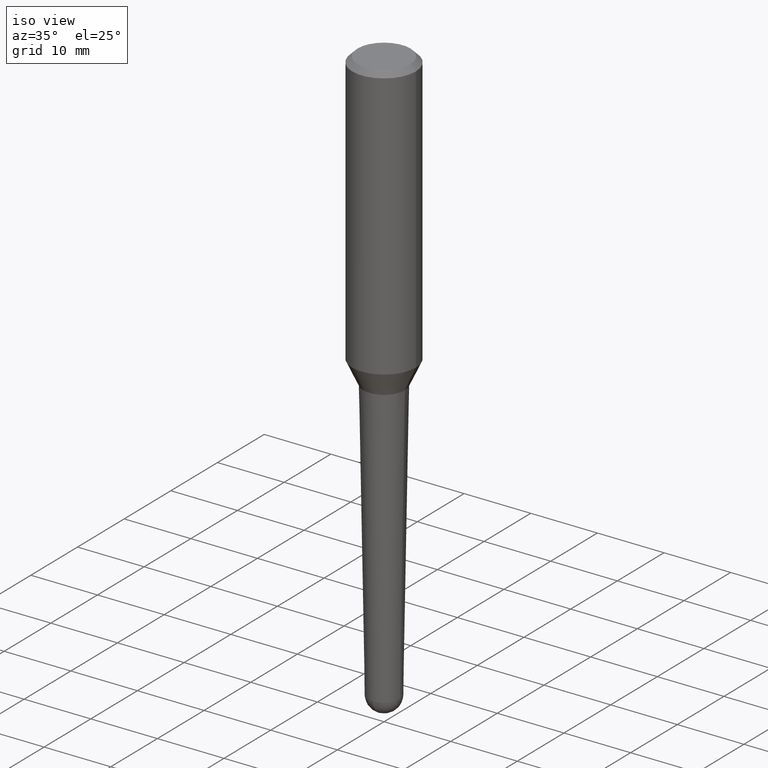
[diagram: clean part render]
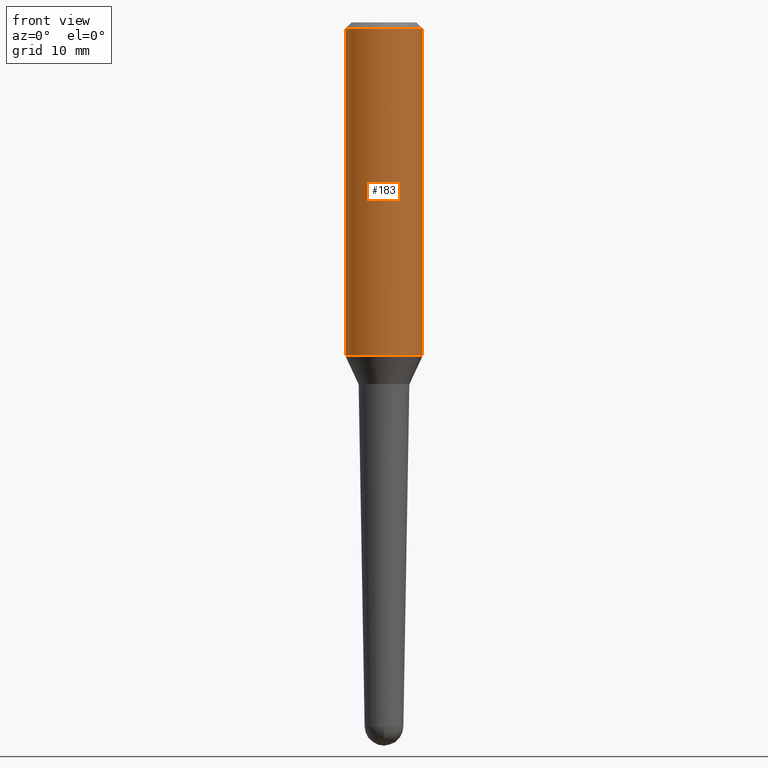
[diagram: tour spotlight — one face highlighted and labeled with its STEP entity id]
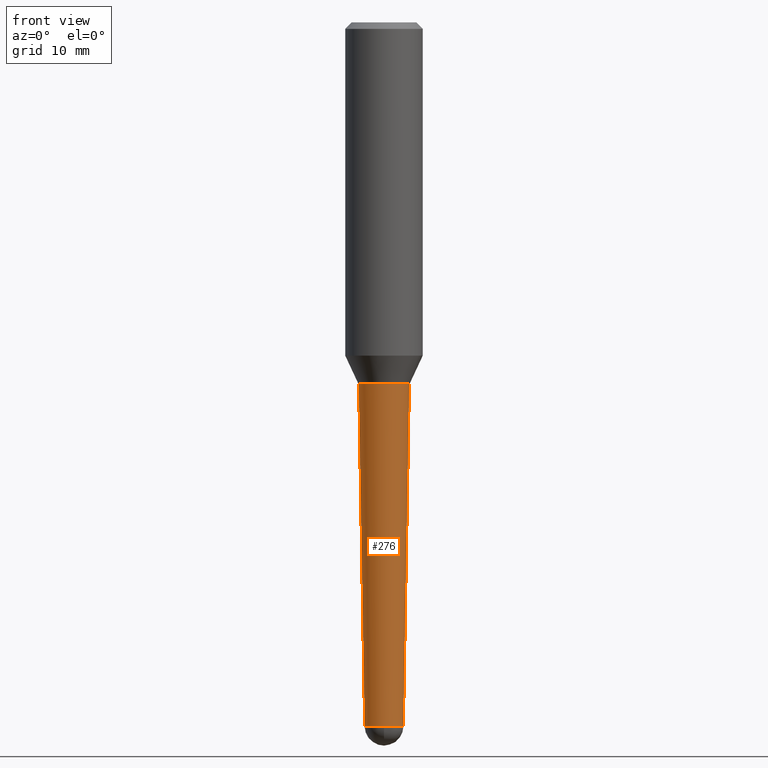
[diagram: tour spotlight — one face highlighted and labeled with its STEP entity id]
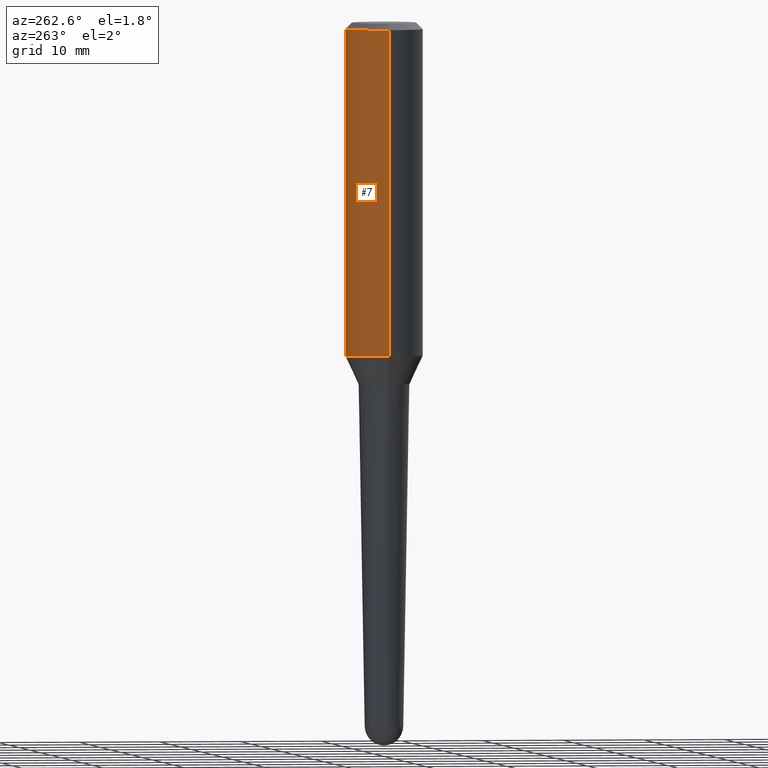
[diagram: tour spotlight — one face highlighted and labeled with its STEP entity id]
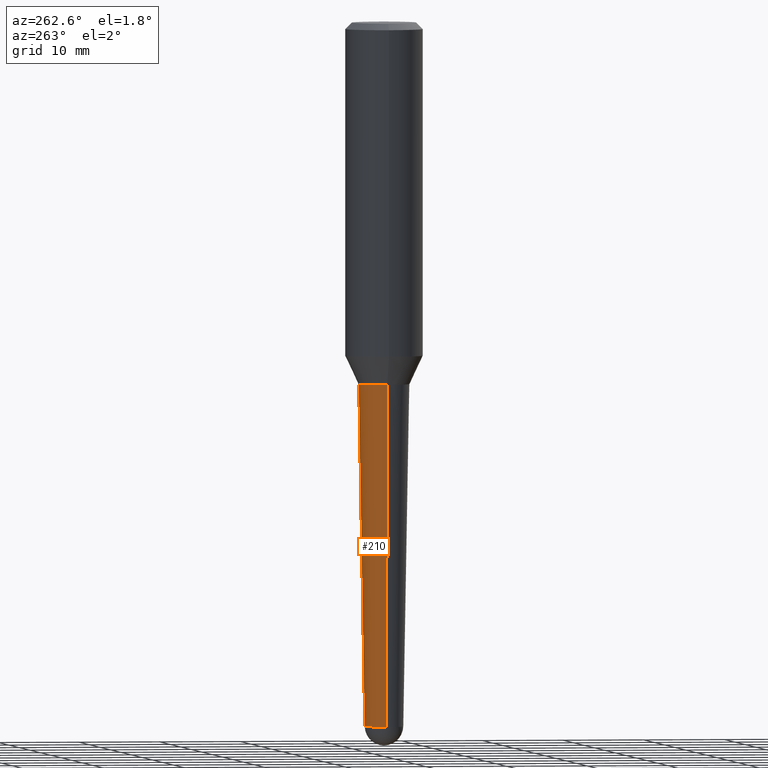
[diagram: tour spotlight — one face highlighted and labeled with its STEP entity id]
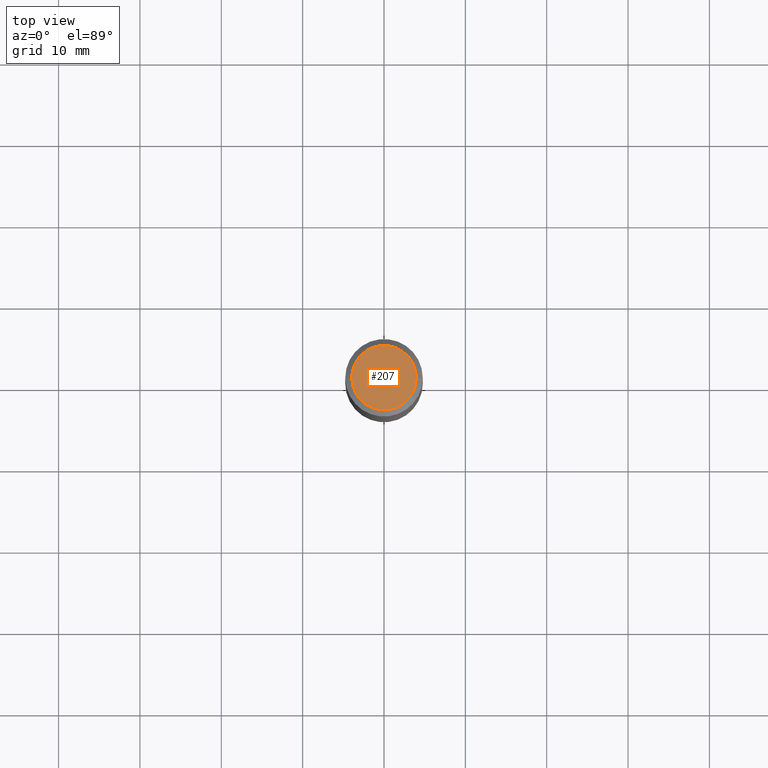
[diagram: tour spotlight — one face highlighted and labeled with its STEP entity id]
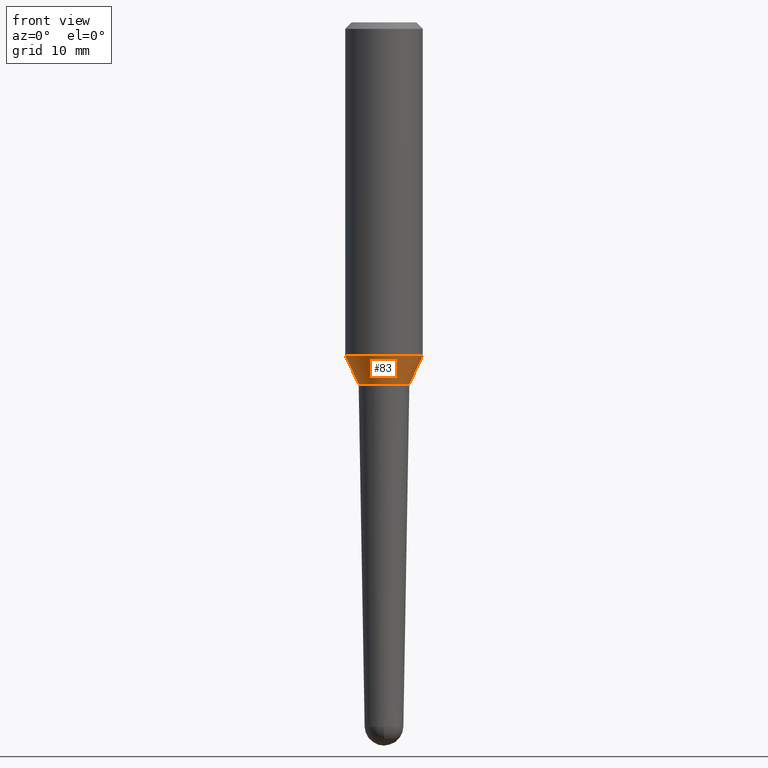
[diagram: tour spotlight — one face highlighted and labeled with its STEP entity id]
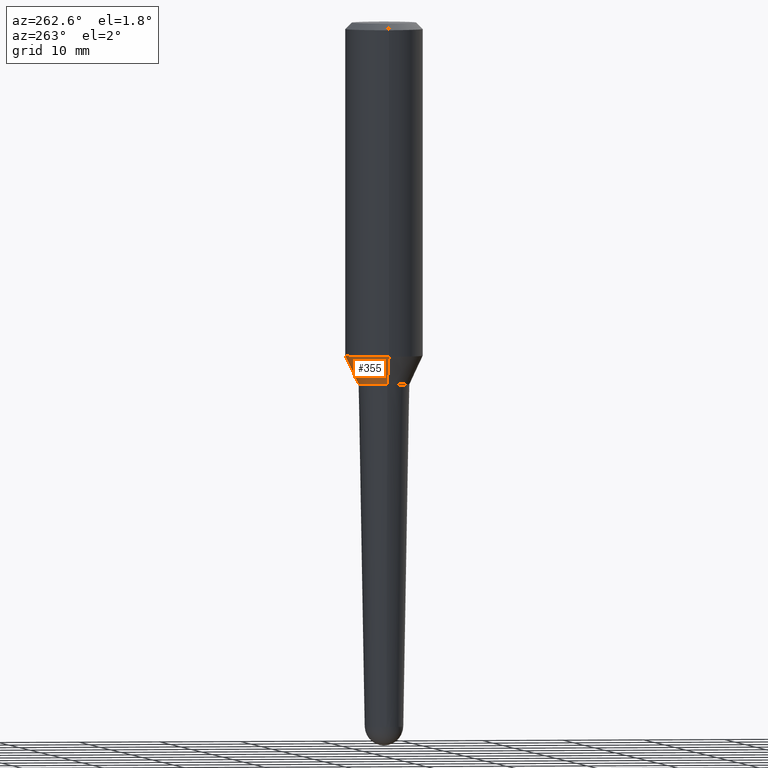
[diagram: tour spotlight — one face highlighted and labeled with its STEP entity id]
A machine part: a face-by-face anatomy tour. The part has 15 B-rep faces; the first image is the clean iso view, then the 7 largest visible faces are spotlighted one at a time (largest first), each with its STEP entity span.

Face 1 — front view, entity #183. In plain terms, the highlighted cylindrical surface (partial cylindrical patch) has radius 4.7625 mm, axis along (-0, 0, 1).
Definition (entity closure, byte-faithful):
#1 = ORIENTED_EDGE ( 'NONE', *, *, #111, .T. ) ;
#20 = CYLINDRICAL_SURFACE ( 'NONE', #156, 0.1875000000000001110 ) ;
#31 = LINE ( 'NONE', #93, #299 ) ;
#44 = CARTESIAN_POINT ( 'NONE',  ( -1.450455682483482035E-44, 2.070866303999251778E-30, 5.931196827434296760E-16 ) ) ;
#47 = EDGE_CURVE ( 'NONE', #339, #372, #418, .T. ) ;
#48 = DIRECTION ( 'NONE',  ( 1.000000000000000000, -6.982962677686265133E-15, 0.000000000000000000 ) ) ;
#76 = ORIENTED_EDGE ( 'NONE', *, *, #138, .F. ) ;
#79 = FACE_OUTER_BOUND ( 'NONE', #280, .T. ) ;
#88 = DIRECTION ( 'NONE',  ( 1.000000000000000000, -6.982962677686266711E-15, 0.000000000000000000 ) ) ;
#93 = CARTESIAN_POINT ( 'NONE',  ( 0.1875000000000001110, -1.309305502066173628E-15, 5.931196827434387479E-16 ) ) ;
#102 = CARTESIAN_POINT ( 'NONE',  ( -0.1875000000000001110, 1.332267629550190807E-15, 5.931196827434205055E-16 ) ) ;
#111 = EDGE_CURVE ( 'NONE', #339, #392, #412, .T. ) ;
#127 = VERTEX_POINT ( 'NONE', #289 ) ;
#134 = AXIS2_PLACEMENT_3D ( 'NONE', #424, #398, #48 ) ;
#138 = EDGE_CURVE ( 'NONE', #372, #127, #237, .T. ) ;
#156 = AXIS2_PLACEMENT_3D ( 'NONE', #44, #160, #184 ) ;
#160 = DIRECTION ( 'NONE',  ( -2.445468806185136597E-29, 3.491481338843145583E-15, 1.000000000000000000 ) ) ;
#162 = CARTESIAN_POINT ( 'NONE',  ( -0.1874999999999999722, -1.537696109422416585E-15, -0.03125000000000003469 ) ) ;
#183 = ADVANCED_FACE ( 'NONE', ( #79 ), #20, .T. ) ;
#184 = DIRECTION ( 'NONE',  ( 1.000000000000000000, -6.982962677686266711E-15, 4.852736867747363404E-29 ) ) ;
#215 = VECTOR ( 'NONE', #248, 39.37007874015748143 ) ;
#237 = CIRCLE ( 'NONE', #332, 0.1874999999999999722 ) ;
#248 = DIRECTION ( 'NONE',  ( -2.445468806185136877E-29, 3.491481338843145188E-15, 1.000000000000000000 ) ) ;
#254 = CARTESIAN_POINT ( 'NONE',  ( 7.642090019328561499E-31, -1.091087918388484350E-16, -0.03125000000000003469 ) ) ;
#263 = ORIENTED_EDGE ( 'NONE', *, *, #47, .F. ) ;
#280 = EDGE_LOOP ( 'NONE', ( #263, #1, #284, #76 ) ) ;
#284 = ORIENTED_EDGE ( 'NONE', *, *, #386, .T. ) ;
#289 = CARTESIAN_POINT ( 'NONE',  ( 0.1874999999999999722, -1.418414293905023123E-15, -0.03125000000000003469 ) ) ;
#299 = VECTOR ( 'NONE', #446, 39.37007874015748143 ) ;
#306 = CARTESIAN_POINT ( 'NONE',  ( 0.1875000000000002220, -6.940124188172538719E-15, -1.612730568960181632 ) ) ;
#332 = AXIS2_PLACEMENT_3D ( 'NONE', #254, #438, #88 ) ;
#339 = VERTEX_POINT ( 'NONE', #380 ) ;
#372 = VERTEX_POINT ( 'NONE', #162 ) ;
#380 = CARTESIAN_POINT ( 'NONE',  ( -0.1875000000000002220, -4.298551056556173495E-15, -1.612730568960181632 ) ) ;
#386 = EDGE_CURVE ( 'NONE', #392, #127, #31, .T. ) ;
#392 = VERTEX_POINT ( 'NONE', #306 ) ;
#398 = DIRECTION ( 'NONE',  ( -2.445468806185136597E-29, 3.491481338843145583E-15, 1.000000000000000000 ) ) ;
#412 = CIRCLE ( 'NONE', #134, 0.1875000000000002220 ) ;
#418 = LINE ( 'NONE', #102, #215 ) ;
#424 = CARTESIAN_POINT ( 'NONE',  ( 3.943882299173331521E-29, -5.630818686106362922E-15, -1.612730568960181632 ) ) ;
#438 = DIRECTION ( 'NONE',  ( -2.445468806185136597E-29, 3.491481338843145583E-15, 1.000000000000000000 ) ) ;
#446 = DIRECTION ( 'NONE',  ( -2.445468806185136877E-29, 3.491481338843145188E-15, 1.000000000000000000 ) ) ;

Face 2 — front view, entity #276. In plain terms, the highlighted conical surface has half-angle 1 deg.
Definition (entity closure, byte-faithful):
#4 = CIRCLE ( 'NONE', #295, 0.1227233669046327580 ) ;
#9 = CARTESIAN_POINT ( 'NONE',  ( 8.333759167425016491E-29, -1.189839941604824975E-14, -3.407837035723817021 ) ) ;
#19 = VERTEX_POINT ( 'NONE', #282 ) ;
#24 = EDGE_CURVE ( 'NONE', #56, #19, #422, .T. ) ;
#33 = CARTESIAN_POINT ( 'NONE',  ( 0.09378571380566988469, -1.255330155525340776E-14, -3.407837035723817021 ) ) ;
#45 = VECTOR ( 'NONE', #337, 39.37007874015748143 ) ;
#56 = VERTEX_POINT ( 'NONE', #395 ) ;
#92 = ORIENTED_EDGE ( 'NONE', *, *, #24, .F. ) ;
#110 = CARTESIAN_POINT ( 'NONE',  ( 0.09378571380566988469, -9.760183294501979653E-15, -3.407837035723817021 ) ) ;
#114 = VERTEX_POINT ( 'NONE', #188 ) ;
#132 = CARTESIAN_POINT ( 'NONE',  ( 8.333759167425016491E-29, -1.189839941604824975E-14, -3.407837035723817021 ) ) ;
#135 = LINE ( 'NONE', #33, #45 ) ;
#140 = CONICAL_SURFACE ( 'NONE', #155, 0.09378571380566988469, 0.01745329251994321915 ) ;
#142 = DIRECTION ( 'NONE',  ( -0.01745240643728343533, 3.614956375479315570E-15, 0.9998476951563912696 ) ) ;
#149 = DIRECTION ( 'NONE',  ( 1.000000000000000000, -6.982962677686268288E-15, 0.000000000000000000 ) ) ;
#152 = EDGE_CURVE ( 'NONE', #114, #176, #278, .T. ) ;
#155 = AXIS2_PLACEMENT_3D ( 'NONE', #132, #414, #340 ) ;
#161 = VERTEX_POINT ( 'NONE', #288 ) ;
#172 = CARTESIAN_POINT ( 'NONE',  ( -0.09378571380566988469, -1.123201183942130320E-14, -3.407837035723817021 ) ) ;
#176 = VERTEX_POINT ( 'NONE', #110 ) ;
#182 = DIRECTION ( 'NONE',  ( -2.445468806185136597E-29, 3.491481338843145583E-15, 1.000000000000000000 ) ) ;
#188 = CARTESIAN_POINT ( 'NONE',  ( -6.663875766268585857E-16, -0.09378571380568140325, -3.407837035723816577 ) ) ;
#192 = AXIS2_PLACEMENT_3D ( 'NONE', #9, #182, #149 ) ;
#198 = ORIENTED_EDGE ( 'NONE', *, *, #249, .F. ) ;
#233 = CARTESIAN_POINT ( 'NONE',  ( 4.279570410823989044E-29, -6.110092342975505460E-15, -1.750000000000000222 ) ) ;
#236 = CARTESIAN_POINT ( 'NONE',  ( 8.333759167425016491E-29, -1.189839941604824975E-14, -3.407837035723817021 ) ) ;
#249 = EDGE_CURVE ( 'NONE', #19, #161, #4, .T. ) ;
#261 = CIRCLE ( 'NONE', #408, 0.09378571380566988469 ) ;
#276 = ADVANCED_FACE ( 'NONE', ( #279 ), #140, .T. ) ;
#278 = CIRCLE ( 'NONE', #192, 0.09378571380566988469 ) ;
#279 = FACE_OUTER_BOUND ( 'NONE', #319, .T. ) ;
#282 = CARTESIAN_POINT ( 'NONE',  ( -0.1227233669046327580, -5.238090374354422874E-15, -1.750000000000000222 ) ) ;
#288 = CARTESIAN_POINT ( 'NONE',  ( 0.1227233669046327580, -6.967065033750554701E-15, -1.750000000000000222 ) ) ;
#295 = AXIS2_PLACEMENT_3D ( 'NONE', #233, #441, #444 ) ;
#296 = ORIENTED_EDGE ( 'NONE', *, *, #305, .T. ) ;
#305 = EDGE_CURVE ( 'NONE', #176, #161, #135, .T. ) ;
#319 = EDGE_LOOP ( 'NONE', ( #92, #440, #334, #296, #198 ) ) ;
#334 = ORIENTED_EDGE ( 'NONE', *, *, #152, .T. ) ;
#337 = DIRECTION ( 'NONE',  ( 0.01745240643728343533, 3.369080066536508461E-15, 0.9998476951563912696 ) ) ;
#340 = DIRECTION ( 'NONE',  ( 1.000000000000000000, -6.982962677686268288E-15, 0.000000000000000000 ) ) ;
#342 = DIRECTION ( 'NONE',  ( 1.000000000000000000, -6.982962677686268288E-15, 0.000000000000000000 ) ) ;
#376 = DIRECTION ( 'NONE',  ( -2.445468806185136597E-29, 3.491481338843145583E-15, 1.000000000000000000 ) ) ;
#391 = EDGE_CURVE ( 'NONE', #56, #114, #261, .T. ) ;
#395 = CARTESIAN_POINT ( 'NONE',  ( -0.09378571380566988469, -8.235051106887862645E-15, -3.407837035723817021 ) ) ;
#408 = AXIS2_PLACEMENT_3D ( 'NONE', #236, #376, #342 ) ;
#411 = VECTOR ( 'NONE', #142, 39.37007874015748143 ) ;
#414 = DIRECTION ( 'NONE',  ( -2.445468806185136597E-29, 3.491481338843145583E-15, 1.000000000000000000 ) ) ;
#422 = LINE ( 'NONE', #172, #411 ) ;
#440 = ORIENTED_EDGE ( 'NONE', *, *, #391, .T. ) ;
#441 = DIRECTION ( 'NONE',  ( -2.445468806185136597E-29, 3.491481338843145583E-15, 1.000000000000000000 ) ) ;
#444 = DIRECTION ( 'NONE',  ( 1.000000000000000000, -6.982962677686264344E-15, 0.000000000000000000 ) ) ;

Face 3 — auxiliary view, entity #7. In plain terms, the highlighted cylindrical surface (partial cylindrical patch) has radius 4.7625 mm, axis along (-0, 0, 1).
Definition (entity closure, byte-faithful):
#7 = ADVANCED_FACE ( 'NONE', ( #416 ), #244, .T. ) ;
#11 = EDGE_CURVE ( 'NONE', #127, #372, #118, .T. ) ;
#23 = DIRECTION ( 'NONE',  ( 1.000000000000000000, -6.982962677686265133E-15, 0.000000000000000000 ) ) ;
#31 = LINE ( 'NONE', #93, #299 ) ;
#34 = CIRCLE ( 'NONE', #374, 0.1875000000000002220 ) ;
#40 = AXIS2_PLACEMENT_3D ( 'NONE', #381, #313, #314 ) ;
#47 = EDGE_CURVE ( 'NONE', #339, #372, #418, .T. ) ;
#69 = DIRECTION ( 'NONE',  ( 1.000000000000000000, -6.982962677686266711E-15, 0.000000000000000000 ) ) ;
#71 = ORIENTED_EDGE ( 'NONE', *, *, #47, .T. ) ;
#93 = CARTESIAN_POINT ( 'NONE',  ( 0.1875000000000001110, -1.309305502066173628E-15, 5.931196827434387479E-16 ) ) ;
#102 = CARTESIAN_POINT ( 'NONE',  ( -0.1875000000000001110, 1.332267629550190807E-15, 5.931196827434205055E-16 ) ) ;
#118 = CIRCLE ( 'NONE', #354, 0.1874999999999999722 ) ;
#127 = VERTEX_POINT ( 'NONE', #289 ) ;
#139 = DIRECTION ( 'NONE',  ( -2.445468806185136597E-29, 3.491481338843145583E-15, 1.000000000000000000 ) ) ;
#162 = CARTESIAN_POINT ( 'NONE',  ( -0.1874999999999999722, -1.537696109422416585E-15, -0.03125000000000003469 ) ) ;
#196 = DIRECTION ( 'NONE',  ( -2.445468806185136597E-29, 3.491481338843145583E-15, 1.000000000000000000 ) ) ;
#215 = VECTOR ( 'NONE', #248, 39.37007874015748143 ) ;
#242 = ORIENTED_EDGE ( 'NONE', *, *, #386, .F. ) ;
#244 = CYLINDRICAL_SURFACE ( 'NONE', #40, 0.1875000000000001110 ) ;
#246 = CARTESIAN_POINT ( 'NONE',  ( 3.943882299173331521E-29, -5.630818686106362922E-15, -1.612730568960181632 ) ) ;
#248 = DIRECTION ( 'NONE',  ( -2.445468806185136877E-29, 3.491481338843145188E-15, 1.000000000000000000 ) ) ;
#289 = CARTESIAN_POINT ( 'NONE',  ( 0.1874999999999999722, -1.418414293905023123E-15, -0.03125000000000003469 ) ) ;
#299 = VECTOR ( 'NONE', #446, 39.37007874015748143 ) ;
#306 = CARTESIAN_POINT ( 'NONE',  ( 0.1875000000000002220, -6.940124188172538719E-15, -1.612730568960181632 ) ) ;
#313 = DIRECTION ( 'NONE',  ( -2.445468806185136597E-29, 3.491481338843145583E-15, 1.000000000000000000 ) ) ;
#314 = DIRECTION ( 'NONE',  ( 1.000000000000000000, -6.982962677686266711E-15, 4.852736867747363404E-29 ) ) ;
#339 = VERTEX_POINT ( 'NONE', #380 ) ;
#354 = AXIS2_PLACEMENT_3D ( 'NONE', #460, #139, #69 ) ;
#371 = EDGE_CURVE ( 'NONE', #392, #339, #34, .T. ) ;
#372 = VERTEX_POINT ( 'NONE', #162 ) ;
#374 = AXIS2_PLACEMENT_3D ( 'NONE', #246, #196, #23 ) ;
#380 = CARTESIAN_POINT ( 'NONE',  ( -0.1875000000000002220, -4.298551056556173495E-15, -1.612730568960181632 ) ) ;
#381 = CARTESIAN_POINT ( 'NONE',  ( -1.450455682483482035E-44, 2.070866303999251778E-30, 5.931196827434296760E-16 ) ) ;
#386 = EDGE_CURVE ( 'NONE', #392, #127, #31, .T. ) ;
#392 = VERTEX_POINT ( 'NONE', #306 ) ;
#406 = ORIENTED_EDGE ( 'NONE', *, *, #371, .T. ) ;
#416 = FACE_OUTER_BOUND ( 'NONE', #423, .T. ) ;
#418 = LINE ( 'NONE', #102, #215 ) ;
#423 = EDGE_LOOP ( 'NONE', ( #406, #71, #443, #242 ) ) ;
#443 = ORIENTED_EDGE ( 'NONE', *, *, #11, .F. ) ;
#446 = DIRECTION ( 'NONE',  ( -2.445468806185136877E-29, 3.491481338843145188E-15, 1.000000000000000000 ) ) ;
#460 = CARTESIAN_POINT ( 'NONE',  ( 7.642090019328561499E-31, -1.091087918388484350E-16, -0.03125000000000003469 ) ) ;

Face 4 — auxiliary view, entity #210. In plain terms, the highlighted conical surface has half-angle 1 deg.
Definition (entity closure, byte-faithful):
#6 = AXIS2_PLACEMENT_3D ( 'NONE', #57, #405, #99 ) ;
#16 = CONICAL_SURFACE ( 'NONE', #26, 0.09378571380566988469, 0.01745329251994321915 ) ;
#19 = VERTEX_POINT ( 'NONE', #282 ) ;
#24 = EDGE_CURVE ( 'NONE', #56, #19, #422, .T. ) ;
#26 = AXIS2_PLACEMENT_3D ( 'NONE', #297, #84, #125 ) ;
#33 = CARTESIAN_POINT ( 'NONE',  ( 0.09378571380566988469, -1.255330155525340776E-14, -3.407837035723817021 ) ) ;
#45 = VECTOR ( 'NONE', #337, 39.37007874015748143 ) ;
#51 = ORIENTED_EDGE ( 'NONE', *, *, #305, .F. ) ;
#56 = VERTEX_POINT ( 'NONE', #395 ) ;
#57 = CARTESIAN_POINT ( 'NONE',  ( 4.279570410823989044E-29, -6.110092342975505460E-15, -1.750000000000000222 ) ) ;
#84 = DIRECTION ( 'NONE',  ( -2.445468806185136597E-29, 3.491481338843145583E-15, 1.000000000000000000 ) ) ;
#96 = CIRCLE ( 'NONE', #453, 0.09378571380566988469 ) ;
#99 = DIRECTION ( 'NONE',  ( 1.000000000000000000, -6.982962677686264344E-15, 0.000000000000000000 ) ) ;
#100 = CARTESIAN_POINT ( 'NONE',  ( 8.333759167425016491E-29, -1.189839941604824975E-14, -3.407837035723817021 ) ) ;
#105 = EDGE_CURVE ( 'NONE', #176, #170, #96, .T. ) ;
#110 = CARTESIAN_POINT ( 'NONE',  ( 0.09378571380566988469, -9.760183294501979653E-15, -3.407837035723817021 ) ) ;
#125 = DIRECTION ( 'NONE',  ( 1.000000000000000000, -6.982962677686268288E-15, 0.000000000000000000 ) ) ;
#135 = LINE ( 'NONE', #33, #45 ) ;
#142 = DIRECTION ( 'NONE',  ( -0.01745240643728343533, 3.614956375479315570E-15, 0.9998476951563912696 ) ) ;
#161 = VERTEX_POINT ( 'NONE', #288 ) ;
#170 = VERTEX_POINT ( 'NONE', #430 ) ;
#172 = CARTESIAN_POINT ( 'NONE',  ( -0.09378571380566988469, -1.123201183942130320E-14, -3.407837035723817021 ) ) ;
#176 = VERTEX_POINT ( 'NONE', #110 ) ;
#187 = CARTESIAN_POINT ( 'NONE',  ( 8.333759167425016491E-29, -1.189839941604824975E-14, -3.407837035723817021 ) ) ;
#199 = AXIS2_PLACEMENT_3D ( 'NONE', #100, #407, #200 ) ;
#200 = DIRECTION ( 'NONE',  ( 1.000000000000000000, -6.982962677686268288E-15, 0.000000000000000000 ) ) ;
#204 = ORIENTED_EDGE ( 'NONE', *, *, #105, .T. ) ;
#210 = ADVANCED_FACE ( 'NONE', ( #259 ), #16, .T. ) ;
#217 = DIRECTION ( 'NONE',  ( -2.445468806185136597E-29, 3.491481338843145583E-15, 1.000000000000000000 ) ) ;
#225 = CIRCLE ( 'NONE', #6, 0.1227233669046327580 ) ;
#239 = EDGE_LOOP ( 'NONE', ( #273, #344, #457, #51, #204 ) ) ;
#247 = CIRCLE ( 'NONE', #199, 0.09378571380566988469 ) ;
#259 = FACE_OUTER_BOUND ( 'NONE', #239, .T. ) ;
#273 = ORIENTED_EDGE ( 'NONE', *, *, #366, .T. ) ;
#282 = CARTESIAN_POINT ( 'NONE',  ( -0.1227233669046327580, -5.238090374354422874E-15, -1.750000000000000222 ) ) ;
#288 = CARTESIAN_POINT ( 'NONE',  ( 0.1227233669046327580, -6.967065033750554701E-15, -1.750000000000000222 ) ) ;
#297 = CARTESIAN_POINT ( 'NONE',  ( 8.333759167425016491E-29, -1.189839941604824975E-14, -3.407837035723817021 ) ) ;
#305 = EDGE_CURVE ( 'NONE', #176, #161, #135, .T. ) ;
#320 = DIRECTION ( 'NONE',  ( 1.000000000000000000, -6.982962677686268288E-15, 0.000000000000000000 ) ) ;
#323 = EDGE_CURVE ( 'NONE', #161, #19, #225, .T. ) ;
#337 = DIRECTION ( 'NONE',  ( 0.01745240643728343533, 3.369080066536508461E-15, 0.9998476951563912696 ) ) ;
#344 = ORIENTED_EDGE ( 'NONE', *, *, #24, .T. ) ;
#366 = EDGE_CURVE ( 'NONE', #170, #56, #247, .T. ) ;
#395 = CARTESIAN_POINT ( 'NONE',  ( -0.09378571380566988469, -8.235051106887862645E-15, -3.407837035723817021 ) ) ;
#405 = DIRECTION ( 'NONE',  ( -2.445468806185136597E-29, 3.491481338843145583E-15, 1.000000000000000000 ) ) ;
#407 = DIRECTION ( 'NONE',  ( -2.445468806185136597E-29, 3.491481338843145583E-15, 1.000000000000000000 ) ) ;
#411 = VECTOR ( 'NONE', #142, 39.37007874015748143 ) ;
#422 = LINE ( 'NONE', #172, #411 ) ;
#430 = CARTESIAN_POINT ( 'NONE',  ( 6.549021392052416310E-16, 0.09378571380565797755, -3.407837035723817465 ) ) ;
#453 = AXIS2_PLACEMENT_3D ( 'NONE', #187, #217, #320 ) ;
#457 = ORIENTED_EDGE ( 'NONE', *, *, #323, .F. ) ;

Face 5 — top view, entity #207. In plain terms, the highlighted planar face has unit normal (0, -0, -1).
Definition (entity closure, byte-faithful):
#8 = PLANE ( 'NONE',  #119 ) ;
#28 = DIRECTION ( 'NONE',  ( 1.000000000000000000, -6.982962677686267499E-15, 4.891558762689322855E-29 ) ) ;
#38 = VERTEX_POINT ( 'NONE', #144 ) ;
#65 = EDGE_CURVE ( 'NONE', #38, #177, #277, .T. ) ;
#89 = ORIENTED_EDGE ( 'NONE', *, *, #322, .T. ) ;
#106 = DIRECTION ( 'NONE',  ( -2.445468806185136597E-29, 3.491481338843145583E-15, 1.000000000000000000 ) ) ;
#112 = DIRECTION ( 'NONE',  ( 2.438088387897960049E-29, -3.491481338843145188E-15, -1.000000000000000000 ) ) ;
#115 = FACE_OUTER_BOUND ( 'NONE', #368, .T. ) ;
#119 = AXIS2_PLACEMENT_3D ( 'NONE', #428, #112, #260 ) ;
#144 = CARTESIAN_POINT ( 'NONE',  ( -0.1562500000000006939, 1.145642314307903724E-15, -8.364248946791608996E-16 ) ) ;
#177 = VERTEX_POINT ( 'NONE', #393 ) ;
#207 = ADVANCED_FACE ( 'NONE', ( #115 ), #8, .F. ) ;
#218 = CARTESIAN_POINT ( 'NONE',  ( 2.045450988654557291E-44, -2.920361911116106855E-30, -8.364248946791531096E-16 ) ) ;
#260 = DIRECTION ( 'NONE',  ( -1.000000000000000000, 6.982962677686265922E-15, -4.876176775795935793E-29 ) ) ;
#275 = CARTESIAN_POINT ( 'NONE',  ( 2.045450988654557291E-44, -2.920361911116106855E-30, -8.364248946791531096E-16 ) ) ;
#277 = CIRCLE ( 'NONE', #331, 0.1562500000000006939 ) ;
#287 = AXIS2_PLACEMENT_3D ( 'NONE', #275, #307, #28 ) ;
#307 = DIRECTION ( 'NONE',  ( -2.445468806185136597E-29, 3.491481338843145583E-15, 1.000000000000000000 ) ) ;
#322 = EDGE_CURVE ( 'NONE', #177, #38, #419, .T. ) ;
#331 = AXIS2_PLACEMENT_3D ( 'NONE', #218, #106, #389 ) ;
#352 = ORIENTED_EDGE ( 'NONE', *, *, #65, .T. ) ;
#368 = EDGE_LOOP ( 'NONE', ( #352, #89 ) ) ;
#389 = DIRECTION ( 'NONE',  ( 1.000000000000000000, -6.982962677686267499E-15, 4.891558762689322855E-29 ) ) ;
#393 = CARTESIAN_POINT ( 'NONE',  ( 0.1562500000000006939, -1.233702489286410087E-15, -8.364248946791450238E-16 ) ) ;
#419 = CIRCLE ( 'NONE', #287, 0.1562500000000006939 ) ;
#428 = CARTESIAN_POINT ( 'NONE',  ( 1.022725494327278645E-44, -1.460180955558053427E-30, -4.182124473395765548E-16 ) ) ;

Face 6 — front view, entity #83. In plain terms, the highlighted conical surface has half-angle 25 deg.
Definition (entity closure, byte-faithful):
#48 = DIRECTION ( 'NONE',  ( 1.000000000000000000, -6.982962677686265133E-15, 0.000000000000000000 ) ) ;
#54 = VERTEX_POINT ( 'NONE', #221 ) ;
#64 = CARTESIAN_POINT ( 'NONE',  ( -0.1237233669046324813, -5.229239206327401940E-15, -1.749500000000000277 ) ) ;
#77 = CARTESIAN_POINT ( 'NONE',  ( 4.278347676420897364E-29, -6.108346602306083956E-15, -1.749500000000000277 ) ) ;
#83 = ADVANCED_FACE ( 'NONE', ( #363 ), #178, .T. ) ;
#108 = AXIS2_PLACEMENT_3D ( 'NONE', #290, #227, #425 ) ;
#111 = EDGE_CURVE ( 'NONE', #339, #392, #412, .T. ) ;
#134 = AXIS2_PLACEMENT_3D ( 'NONE', #424, #398, #48 ) ;
#163 = EDGE_CURVE ( 'NONE', #394, #54, #309, .T. ) ;
#167 = LINE ( 'NONE', #171, #274 ) ;
#171 = CARTESIAN_POINT ( 'NONE',  ( 0.1237233669046324813, -6.972302255758816845E-15, -1.749500000000000277 ) ) ;
#178 = CONICAL_SURFACE ( 'NONE', #256, 0.1237233669046324813, 0.4363323129985725024 ) ;
#195 = ORIENTED_EDGE ( 'NONE', *, *, #232, .F. ) ;
#221 = CARTESIAN_POINT ( 'NONE',  ( 0.1237233669046324813, -6.972302255758817634E-15, -1.749500000000000277 ) ) ;
#227 = DIRECTION ( 'NONE',  ( -2.445468806185136597E-29, 3.491481338843145583E-15, 1.000000000000000000 ) ) ;
#230 = EDGE_LOOP ( 'NONE', ( #195, #427, #384, #234 ) ) ;
#232 = EDGE_CURVE ( 'NONE', #394, #339, #240, .T. ) ;
#234 = ORIENTED_EDGE ( 'NONE', *, *, #111, .F. ) ;
#240 = LINE ( 'NONE', #64, #431 ) ;
#255 = CARTESIAN_POINT ( 'NONE',  ( -0.1237233669046324813, -5.229239206327401940E-15, -1.749500000000000277 ) ) ;
#256 = AXIS2_PLACEMENT_3D ( 'NONE', #77, #361, #321 ) ;
#272 = DIRECTION ( 'NONE',  ( 0.4226182617406904485, 2.132291770428186856E-16, 0.9063077870366541555 ) ) ;
#274 = VECTOR ( 'NONE', #272, 39.37007874015748143 ) ;
#290 = CARTESIAN_POINT ( 'NONE',  ( 4.278347676420897364E-29, -6.108346602306083956E-15, -1.749500000000000277 ) ) ;
#301 = DIRECTION ( 'NONE',  ( -0.4226182617406904485, 6.167240084480787913E-15, 0.9063077870366541555 ) ) ;
#306 = CARTESIAN_POINT ( 'NONE',  ( 0.1875000000000002220, -6.940124188172538719E-15, -1.612730568960181632 ) ) ;
#309 = CIRCLE ( 'NONE', #108, 0.1237233669046324813 ) ;
#321 = DIRECTION ( 'NONE',  ( 1.000000000000000000, -6.982962677686264344E-15, 0.000000000000000000 ) ) ;
#339 = VERTEX_POINT ( 'NONE', #380 ) ;
#349 = EDGE_CURVE ( 'NONE', #54, #392, #167, .T. ) ;
#361 = DIRECTION ( 'NONE',  ( -2.445468806185136597E-29, 3.491481338843145583E-15, 1.000000000000000000 ) ) ;
#363 = FACE_OUTER_BOUND ( 'NONE', #230, .T. ) ;
#380 = CARTESIAN_POINT ( 'NONE',  ( -0.1875000000000002220, -4.298551056556173495E-15, -1.612730568960181632 ) ) ;
#384 = ORIENTED_EDGE ( 'NONE', *, *, #349, .T. ) ;
#392 = VERTEX_POINT ( 'NONE', #306 ) ;
#394 = VERTEX_POINT ( 'NONE', #255 ) ;
#398 = DIRECTION ( 'NONE',  ( -2.445468806185136597E-29, 3.491481338843145583E-15, 1.000000000000000000 ) ) ;
#412 = CIRCLE ( 'NONE', #134, 0.1875000000000002220 ) ;
#424 = CARTESIAN_POINT ( 'NONE',  ( 3.943882299173331521E-29, -5.630818686106362922E-15, -1.612730568960181632 ) ) ;
#425 = DIRECTION ( 'NONE',  ( 1.000000000000000000, -6.982962677686264344E-15, 0.000000000000000000 ) ) ;
#427 = ORIENTED_EDGE ( 'NONE', *, *, #163, .T. ) ;
#431 = VECTOR ( 'NONE', #301, 39.37007874015748143 ) ;

Face 7 — auxiliary view, entity #355. In plain terms, the highlighted conical surface has half-angle 25 deg.
Definition (entity closure, byte-faithful):
#23 = DIRECTION ( 'NONE',  ( 1.000000000000000000, -6.982962677686265133E-15, 0.000000000000000000 ) ) ;
#34 = CIRCLE ( 'NONE', #374, 0.1875000000000002220 ) ;
#54 = VERTEX_POINT ( 'NONE', #221 ) ;
#64 = CARTESIAN_POINT ( 'NONE',  ( -0.1237233669046324813, -5.229239206327401940E-15, -1.749500000000000277 ) ) ;
#70 = ORIENTED_EDGE ( 'NONE', *, *, #371, .F. ) ;
#73 = EDGE_LOOP ( 'NONE', ( #231, #133, #70, #141 ) ) ;
#104 = DIRECTION ( 'NONE',  ( 1.000000000000000000, -6.982962677686264344E-15, 0.000000000000000000 ) ) ;
#133 = ORIENTED_EDGE ( 'NONE', *, *, #232, .T. ) ;
#141 = ORIENTED_EDGE ( 'NONE', *, *, #349, .F. ) ;
#167 = LINE ( 'NONE', #171, #274 ) ;
#171 = CARTESIAN_POINT ( 'NONE',  ( 0.1237233669046324813, -6.972302255758816845E-15, -1.749500000000000277 ) ) ;
#175 = CONICAL_SURFACE ( 'NONE', #329, 0.1237233669046324813, 0.4363323129985725024 ) ;
#196 = DIRECTION ( 'NONE',  ( -2.445468806185136597E-29, 3.491481338843145583E-15, 1.000000000000000000 ) ) ;
#202 = DIRECTION ( 'NONE',  ( -2.445468806185136597E-29, 3.491481338843145583E-15, 1.000000000000000000 ) ) ;
#221 = CARTESIAN_POINT ( 'NONE',  ( 0.1237233669046324813, -6.972302255758817634E-15, -1.749500000000000277 ) ) ;
#231 = ORIENTED_EDGE ( 'NONE', *, *, #459, .T. ) ;
#232 = EDGE_CURVE ( 'NONE', #394, #339, #240, .T. ) ;
#235 = CIRCLE ( 'NONE', #345, 0.1237233669046324813 ) ;
#240 = LINE ( 'NONE', #64, #431 ) ;
#246 = CARTESIAN_POINT ( 'NONE',  ( 3.943882299173331521E-29, -5.630818686106362922E-15, -1.612730568960181632 ) ) ;
#251 = CARTESIAN_POINT ( 'NONE',  ( 4.278347676420897364E-29, -6.108346602306083956E-15, -1.749500000000000277 ) ) ;
#255 = CARTESIAN_POINT ( 'NONE',  ( -0.1237233669046324813, -5.229239206327401940E-15, -1.749500000000000277 ) ) ;
#272 = DIRECTION ( 'NONE',  ( 0.4226182617406904485, 2.132291770428186856E-16, 0.9063077870366541555 ) ) ;
#274 = VECTOR ( 'NONE', #272, 39.37007874015748143 ) ;
#281 = CARTESIAN_POINT ( 'NONE',  ( 4.278347676420897364E-29, -6.108346602306083956E-15, -1.749500000000000277 ) ) ;
#301 = DIRECTION ( 'NONE',  ( -0.4226182617406904485, 6.167240084480787913E-15, 0.9063077870366541555 ) ) ;
#306 = CARTESIAN_POINT ( 'NONE',  ( 0.1875000000000002220, -6.940124188172538719E-15, -1.612730568960181632 ) ) ;
#329 = AXIS2_PLACEMENT_3D ( 'NONE', #281, #202, #417 ) ;
#339 = VERTEX_POINT ( 'NONE', #380 ) ;
#345 = AXIS2_PLACEMENT_3D ( 'NONE', #251, #458, #104 ) ;
#349 = EDGE_CURVE ( 'NONE', #54, #392, #167, .T. ) ;
#355 = ADVANCED_FACE ( 'NONE', ( #456 ), #175, .T. ) ;
#371 = EDGE_CURVE ( 'NONE', #392, #339, #34, .T. ) ;
#374 = AXIS2_PLACEMENT_3D ( 'NONE', #246, #196, #23 ) ;
#380 = CARTESIAN_POINT ( 'NONE',  ( -0.1875000000000002220, -4.298551056556173495E-15, -1.612730568960181632 ) ) ;
#392 = VERTEX_POINT ( 'NONE', #306 ) ;
#394 = VERTEX_POINT ( 'NONE', #255 ) ;
#417 = DIRECTION ( 'NONE',  ( 1.000000000000000000, -6.982962677686264344E-15, 0.000000000000000000 ) ) ;
#431 = VECTOR ( 'NONE', #301, 39.37007874015748143 ) ;
#456 = FACE_OUTER_BOUND ( 'NONE', #73, .T. ) ;
#458 = DIRECTION ( 'NONE',  ( -2.445468806185136597E-29, 3.491481338843145583E-15, 1.000000000000000000 ) ) ;
#459 = EDGE_CURVE ( 'NONE', #54, #394, #235, .T. ) ;